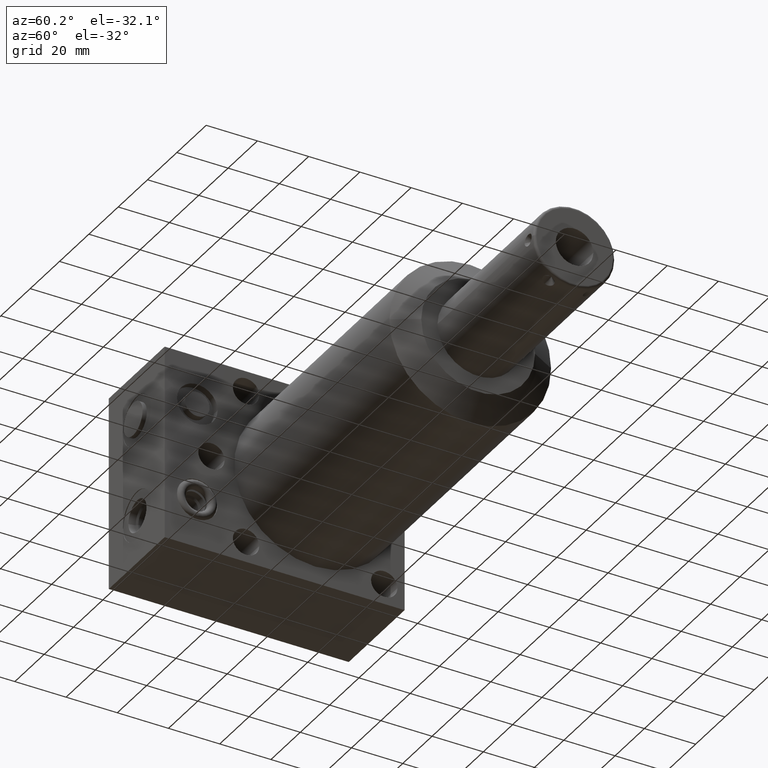
[diagram: clean part render]
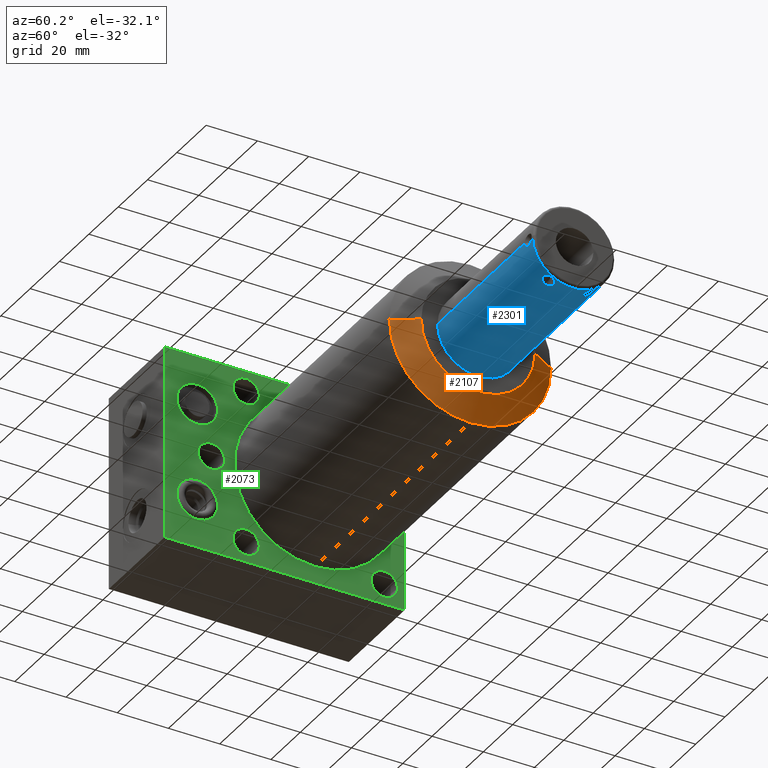
[diagram: same view with three faces highlighted in distinct colors, each labeled with its STEP entity id]
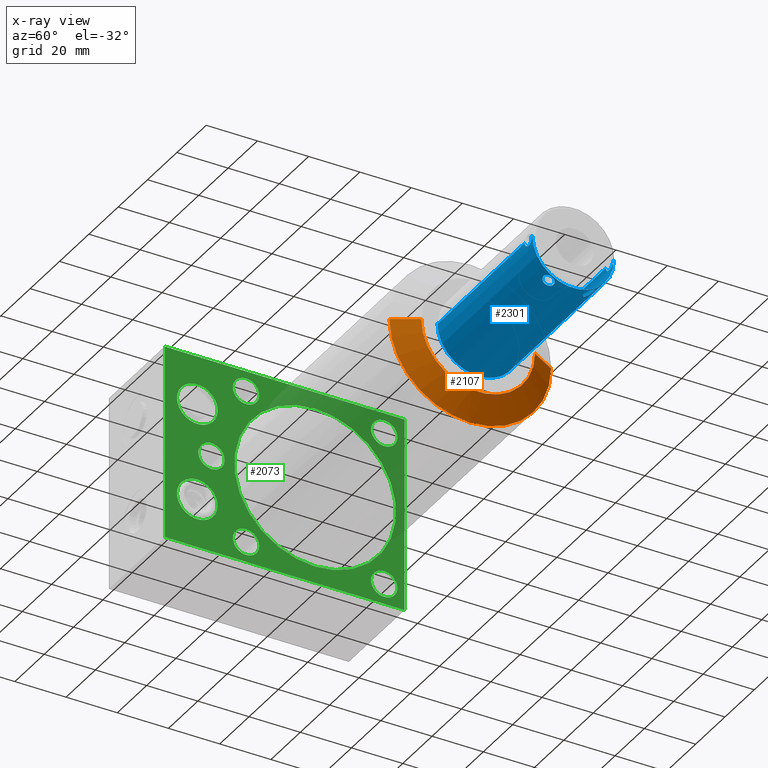
[diagram: x-ray of the same camera — body ghosted, the three highlighted faces saturated]
A machine part, auxiliary view with three faces highlighted in distinct colors.
The next image is the same camera in x-ray (body ghosted, the three faces saturated) — at least one of them is partly hidden behind the body in this view.
Their STEP definitions:

[orange] entity #2107 — the highlighted conical surface has half-angle 60 deg.
#248=CARTESIAN_POINT('',(4.162823776073E0,0.E0,0.E0));
#249=DIRECTION('',(1.E0,0.E0,0.E0));
#250=DIRECTION('',(0.E0,0.E0,-1.E0));
#251=AXIS2_PLACEMENT_3D('',#248,#249,#250);
#256=CARTESIAN_POINT('',(4.162823776073E0,0.E0,0.E0));
#257=DIRECTION('',(1.E0,0.E0,0.E0));
#258=DIRECTION('',(0.E0,-1.E0,0.E0));
#259=AXIS2_PLACEMENT_3D('',#256,#257,#258);
#264=CARTESIAN_POINT('',(4.375E0,0.E0,0.E0));
#265=DIRECTION('',(-1.E0,0.E0,0.E0));
#266=DIRECTION('',(0.E0,1.E0,0.E0));
#267=AXIS2_PLACEMENT_3D('',#264,#265,#266);
#296=DIRECTION('',(5.E-1,8.660254037844E-1,0.E0));
#297=VECTOR('',#296,4.243524478544E-1);
#298=CARTESIAN_POINT('',(4.162823776073E0,-1.2425E0,0.E0));
#299=LINE('',#298,#297);
#319=DIRECTION('',(5.E-1,-8.660254037844E-1,0.E0));
#320=VECTOR('',#319,4.243524478544E-1);
#321=CARTESIAN_POINT('',(4.162823776073E0,1.2425E0,0.E0));
#322=LINE('',#321,#320);
#1714=CARTESIAN_POINT('',(4.375E0,8.75E-1,0.E0));
#1715=CARTESIAN_POINT('',(4.375E0,-8.75E-1,0.E0));
#1716=VERTEX_POINT('',#1714);
#1717=VERTEX_POINT('',#1715);
#1718=CARTESIAN_POINT('',(4.162823776073E0,-1.2425E0,0.E0));
#1719=CARTESIAN_POINT('',(4.162823776073E0,0.E0,-1.2425E0));
#1720=VERTEX_POINT('',#1718);
#1721=VERTEX_POINT('',#1719);
#1724=CARTESIAN_POINT('',(4.162823776073E0,1.2425E0,0.E0));
#1725=VERTEX_POINT('',#1724);
#2091=CARTESIAN_POINT('',(4.268911888036E0,0.E0,0.E0));
#2092=DIRECTION('',(-1.E0,0.E0,0.E0));
#2093=DIRECTION('',(0.E0,1.E0,0.E0));
#2094=AXIS2_PLACEMENT_3D('',#2091,#2092,#2093);
#2095=CONICAL_SURFACE('',#2094,1.05875E0,6.E1);
#2097=ORIENTED_EDGE('',*,*,#2096,.F.);
#2099=ORIENTED_EDGE('',*,*,#2098,.F.);
#2101=ORIENTED_EDGE('',*,*,#2100,.F.);
#2102=ORIENTED_EDGE('',*,*,#2079,.F.);
#2104=ORIENTED_EDGE('',*,*,#2103,.T.);
#2105=EDGE_LOOP('',(#2097,#2099,#2101,#2102,#2104));
#2106=FACE_OUTER_BOUND('',#2105,.F.);
#252=CIRCLE('',#251,1.2425E0);
#260=CIRCLE('',#259,1.2425E0);
#268=CIRCLE('',#267,8.75E-1);
#2079=EDGE_CURVE('',#1720,#1721,#260,.T.);
#2096=EDGE_CURVE('',#1716,#1717,#268,.T.);
#2098=EDGE_CURVE('',#1725,#1716,#322,.T.);
#2100=EDGE_CURVE('',#1721,#1725,#252,.T.);
#2103=EDGE_CURVE('',#1720,#1717,#299,.T.);
#2107=ADVANCED_FACE('',(#2106),#2095,.T.);

[blue] entity #2301 — the highlighted cylindrical surface (partial cylindrical patch) has radius 15.875 mm, axis along (1, 0, 0).
#288=CARTESIAN_POINT('',(4.375E0,0.E0,0.E0));
#289=DIRECTION('',(1.E0,0.E0,0.E0));
#290=DIRECTION('',(0.E0,-1.E0,0.E0));
#291=AXIS2_PLACEMENT_3D('',#288,#289,#290);
#426=CARTESIAN_POINT('',(6.712E0,-6.25E-1,0.E0));
#438=CARTESIAN_POINT('',(6.902E0,-6.25E-1,0.E0));
#485=CARTESIAN_POINT('',(6.902E0,6.25E-1,0.E0));
#486=CARTESIAN_POINT('',(6.902E0,6.25E-1,-9.038778184200E-3));
#487=CARTESIAN_POINT('',(6.899197090101E0,6.246214994407E-1,
-2.641958211217E-2));
#488=CARTESIAN_POINT('',(6.886100187530E0,6.230064168352E-1,
-5.169616009336E-2));
#489=CARTESIAN_POINT('',(6.864905021825E0,6.209008443581E-1,
-7.213962373854E-2));
#490=CARTESIAN_POINT('',(6.837609786821E0,6.191343630447E-1,
-8.557450583044E-2));
#491=CARTESIAN_POINT('',(6.806794509527E0,6.184438666532E-1,
-9.026003401713E-2));
#492=CARTESIAN_POINT('',(6.775946092184E0,6.191530349822E-1,
-8.544671636977E-2));
#493=CARTESIAN_POINT('',(6.748678593607E0,6.209372708755E-1,
-7.183201640715E-2));
#494=CARTESIAN_POINT('',(6.727823744223E0,6.230172500088E-1,
-5.151858289071E-2));
#495=CARTESIAN_POINT('',(6.714864654957E0,6.246133559780E-1,
-2.655961842973E-2));
#496=CARTESIAN_POINT('',(6.712E0,6.25E-1,-9.109854934676E-3));
#497=CARTESIAN_POINT('',(6.712E0,6.25E-1,0.E0));
#502=DIRECTION('',(-1.E0,0.E0,0.E0));
#503=VECTOR('',#502,2.337E0);
#504=CARTESIAN_POINT('',(6.712E0,6.25E-1,0.E0));
#505=LINE('',#504,#503);
#509=DIRECTION('',(-1.E0,0.E0,0.E0));
#510=VECTOR('',#509,2.337E0);
#511=CARTESIAN_POINT('',(6.712E0,-6.25E-1,0.E0));
#512=LINE('',#511,#510);
#516=CARTESIAN_POINT('',(6.902E0,-6.25E-1,0.E0));
#517=CARTESIAN_POINT('',(6.902E0,-6.25E-1,-9.115732308504E-3));
#518=CARTESIAN_POINT('',(6.899135489535E0,-6.246132304563E-1,
-2.657529729536E-2));
#519=CARTESIAN_POINT('',(6.886135110311E0,-6.230125625937E-1,
-5.157630565654E-2));
#520=CARTESIAN_POINT('',(6.865280842056E0,-6.209338542969E-1,
-7.185897611602E-2));
#521=CARTESIAN_POINT('',(6.837992675741E0,-6.191501164435E-1,
-8.546791491443E-2));
#522=CARTESIAN_POINT('',(6.807145437248E0,-6.184441204524E-1,
-9.025768707266E-2));
#523=CARTESIAN_POINT('',(6.776343452505E0,-6.191361767959E-1,
-8.556332011490E-2));
#524=CARTESIAN_POINT('',(6.749035558012E0,-6.209063330313E-1,
-7.209100920678E-2));
#525=CARTESIAN_POINT('',(6.727954823128E0,-6.230009880333E-1,
-5.174131266836E-2));
#526=CARTESIAN_POINT('',(6.714847495378E0,-6.246154425299E-1,
-2.656022335033E-2));
#527=CARTESIAN_POINT('',(6.712E0,-6.25E-1,-9.101365645113E-3));
#528=CARTESIAN_POINT('',(6.712E0,-6.25E-1,0.E0));
#533=DIRECTION('',(-1.E0,0.E0,0.E0));
#534=VECTOR('',#533,2.1E-2);
#535=CARTESIAN_POINT('',(6.923E0,-6.25E-1,0.E0));
#536=LINE('',#535,#534);
#540=CARTESIAN_POINT('',(6.923E0,0.E0,0.E0));
#541=DIRECTION('',(-1.E0,0.E0,0.E0));
#542=DIRECTION('',(0.E0,1.E0,0.E0));
#543=AXIS2_PLACEMENT_3D('',#540,#541,#542);
#548=DIRECTION('',(-1.E0,0.E0,0.E0));
#549=VECTOR('',#548,2.1E-2);
#550=CARTESIAN_POINT('',(6.923E0,6.25E-1,0.E0));
#551=LINE('',#550,#549);
#555=CARTESIAN_POINT('',(6.807E0,2.325419240423E-1,-5.801286525959E-1));
#556=CARTESIAN_POINT('',(6.796341422807E0,2.325419240423E-1,
-5.801286525959E-1));
#557=CARTESIAN_POINT('',(6.776308969172E0,2.355185344188E-1,
-5.789488033486E-1));
#558=CARTESIAN_POINT('',(6.748680543097E0,2.481969727774E-1,
-5.736931216410E-1));
#559=CARTESIAN_POINT('',(6.727752202614E0,2.670095946245E-1,
-5.652509402567E-1));
#560=CARTESIAN_POINT('',(6.714861206217E0,2.892477856714E-1,
-5.542445297767E-1));
#561=CARTESIAN_POINT('',(6.710569464671E0,3.125979507959E-1,
-5.414323247835E-1));
#562=CARTESIAN_POINT('',(6.714860935118E0,3.353642441095E-1,
-5.276192223148E-1));
#563=CARTESIAN_POINT('',(6.727751453750E0,3.560162830489E-1,
-5.138630029042E-1));
#564=CARTESIAN_POINT('',(6.748679466078E0,3.727336147669E-1,
-5.017919687897E-1));
#565=CARTESIAN_POINT('',(6.776307342766E0,3.836247488598E-1,
-4.934397187508E-1));
#566=CARTESIAN_POINT('',(6.796340741207E0,3.861351885901E-1,
-4.914515399635E-1));
#567=CARTESIAN_POINT('',(6.807E0,3.861351885901E-1,-4.914515399635E-1));
#572=CARTESIAN_POINT('',(6.807E0,3.861351885901E-1,-4.914515399635E-1));
#573=CARTESIAN_POINT('',(6.817659415585E0,3.861351885901E-1,
-4.914515399635E-1));
#574=CARTESIAN_POINT('',(6.837693304348E0,3.836247228691E-1,
-4.934397413938E-1));
#575=CARTESIAN_POINT('',(6.865323256663E0,3.727323925167E-1,
-5.017929054970E-1));
#576=CARTESIAN_POINT('',(6.886252210467E0,3.560125239301E-1,
-5.138656518725E-1));
#577=CARTESIAN_POINT('',(6.899140192616E0,3.353600680421E-1,
-5.276218135372E-1));
#578=CARTESIAN_POINT('',(6.903430300103E0,3.125983251271E-1,
-5.414320661552E-1));
#579=CARTESIAN_POINT('',(6.899138606967E0,2.892486449560E-1,
-5.542440235340E-1));
#580=CARTESIAN_POINT('',(6.886252590820E0,2.670159053869E-1,
-5.652479350134E-1));
#581=CARTESIAN_POINT('',(6.865324149441E0,2.481995927447E-1,
-5.736920417536E-1));
#582=CARTESIAN_POINT('',(6.837694600454E0,2.355194054774E-1,
-5.789484485233E-1));
#583=CARTESIAN_POINT('',(6.817659966016E0,2.325419240423E-1,
-5.801286525959E-1));
#584=CARTESIAN_POINT('',(6.807E0,2.325419240423E-1,-5.801286525959E-1));
#589=CARTESIAN_POINT('',(6.807E0,-3.861351885901E-1,-4.914515399635E-1));
#590=CARTESIAN_POINT('',(6.796341422807E0,-3.861351885901E-1,
-4.914515399635E-1));
#591=CARTESIAN_POINT('',(6.776308969172E0,-3.836251039811E-1,
-4.934394355431E-1));
#592=CARTESIAN_POINT('',(6.748680543097E0,-3.727343309288E-1,
-5.017914443881E-1));
#593=CARTESIAN_POINT('',(6.727752202614E0,-3.560168764631E-1,
-5.138625621273E-1));
#594=CARTESIAN_POINT('',(6.714861206217E0,-3.353659498595E-1,
-5.276181952681E-1));
#595=CARTESIAN_POINT('',(6.710569464671E0,-3.125951722947E-1,
-5.414339289520E-1));
#596=CARTESIAN_POINT('',(6.714860935118E0,-2.892495279948E-1,
-5.542435660772E-1));
#597=CARTESIAN_POINT('',(6.727751453750E0,-2.670102730555E-1,
-5.652506467333E-1));
#598=CARTESIAN_POINT('',(6.748679466078E0,-2.481977850035E-1,
-5.736927636274E-1));
#599=CARTESIAN_POINT('',(6.776307342766E0,-2.355189572446E-1,
-5.789486374084E-1));
#600=CARTESIAN_POINT('',(6.796340741207E0,-2.325419240423E-1,
-5.801286525959E-1));
#601=CARTESIAN_POINT('',(6.807E0,-2.325419240423E-1,-5.801286525959E-1));
#606=CARTESIAN_POINT('',(6.807E0,-2.325419240423E-1,-5.801286525959E-1));
#607=CARTESIAN_POINT('',(6.817659415585E0,-2.325419240423E-1,
-5.801286525959E-1));
#608=CARTESIAN_POINT('',(6.837693304348E0,-2.355189898493E-1,
-5.789486262212E-1));
#609=CARTESIAN_POINT('',(6.865323256663E0,-2.481992073409E-1,
-5.736921734813E-1));
#610=CARTESIAN_POINT('',(6.886252210467E0,-2.670144466888E-1,
-5.652487157251E-1));
#611=CARTESIAN_POINT('',(6.899140192616E0,-2.892538600930E-1,
-5.542412451079E-1));
#612=CARTESIAN_POINT('',(6.903430300103E0,-3.125947611504E-1,
-5.414341238182E-1));
#613=CARTESIAN_POINT('',(6.899138606967E0,-3.353650817981E-1,
-5.276186863092E-1));
#614=CARTESIAN_POINT('',(6.886252590820E0,-3.560111184648E-1,
-5.138665247862E-1));
#615=CARTESIAN_POINT('',(6.865324149441E0,-3.727320857352E-1,
-5.017931734026E-1));
#616=CARTESIAN_POINT('',(6.837694600454E0,-3.836243611640E-1,
-4.934400124893E-1));
#617=CARTESIAN_POINT('',(6.817659966016E0,-3.861351885901E-1,
-4.914515399635E-1));
#618=CARTESIAN_POINT('',(6.807E0,-3.861351885901E-1,-4.914515399635E-1));
#1828=CARTESIAN_POINT('',(4.375E0,6.25E-1,0.E0));
#1829=CARTESIAN_POINT('',(4.375E0,-6.25E-1,0.E0));
#1830=VERTEX_POINT('',#1828);
#1831=VERTEX_POINT('',#1829);
#1899=CARTESIAN_POINT('',(6.923E0,6.25E-1,0.E0));
#1901=VERTEX_POINT('',#1899);
#1903=CARTESIAN_POINT('',(6.923E0,-6.25E-1,0.E0));
#1905=VERTEX_POINT('',#1903);
#1906=VERTEX_POINT('',#426);
#1907=VERTEX_POINT('',#438);
#1924=VERTEX_POINT('',#485);
#1925=VERTEX_POINT('',#497);
#1928=VERTEX_POINT('',#555);
#1929=VERTEX_POINT('',#567);
#1932=VERTEX_POINT('',#589);
#1933=VERTEX_POINT('',#601);
#2272=CARTESIAN_POINT('',(4.2456E0,0.E0,0.E0));
#2273=DIRECTION('',(1.E0,0.E0,0.E0));
#2274=DIRECTION('',(0.E0,-1.E0,0.E0));
#2275=AXIS2_PLACEMENT_3D('',#2272,#2273,#2274);
#2276=CYLINDRICAL_SURFACE('',#2275,6.25E-1);
#2277=ORIENTED_EDGE('',*,*,#2265,.T.);
#2278=ORIENTED_EDGE('',*,*,#2170,.T.);
#2279=ORIENTED_EDGE('',*,*,#2120,.F.);
#2280=ORIENTED_EDGE('',*,*,#2167,.F.);
#2282=ORIENTED_EDGE('',*,*,#2281,.F.);
#2283=ORIENTED_EDGE('',*,*,#2163,.F.);
#2285=ORIENTED_EDGE('',*,*,#2284,.F.);
#2286=ORIENTED_EDGE('',*,*,#2159,.T.);
#2287=EDGE_LOOP('',(#2277,#2278,#2279,#2280,#2282,#2283,#2285,#2286));
#2288=FACE_OUTER_BOUND('',#2287,.F.);
#2290=ORIENTED_EDGE('',*,*,#2289,.T.);
#2292=ORIENTED_EDGE('',*,*,#2291,.T.);
#2293=EDGE_LOOP('',(#2290,#2292));
#2294=FACE_BOUND('',#2293,.F.);
#2296=ORIENTED_EDGE('',*,*,#2295,.T.);
#2298=ORIENTED_EDGE('',*,*,#2297,.T.);
#2299=EDGE_LOOP('',(#2296,#2298));
#2300=FACE_BOUND('',#2299,.F.);
#292=CIRCLE('',#291,6.25E-1);
#498=B_SPLINE_CURVE_WITH_KNOTS('',3,(#485,#486,#487,#488,#489,#490,#491,#492,
#493,#494,#495,#496,#497),.UNSPECIFIED.,.F.,.F.,(4,1,1,1,1,1,1,1,1,1,4),(0.E0,
1.E-1,2.E-1,3.E-1,4.E-1,5.E-1,6.E-1,7.E-1,8.E-1,9.E-1,1.E0),.UNSPECIFIED.);
#529=B_SPLINE_CURVE_WITH_KNOTS('',3,(#516,#517,#518,#519,#520,#521,#522,#523,
#524,#525,#526,#527,#528),.UNSPECIFIED.,.F.,.F.,(4,1,1,1,1,1,1,1,1,1,4),(0.E0,
1.E-1,2.E-1,3.E-1,4.E-1,5.E-1,6.E-1,7.E-1,8.E-1,9.E-1,1.E0),.UNSPECIFIED.);
#544=CIRCLE('',#543,6.25E-1);
#568=B_SPLINE_CURVE_WITH_KNOTS('',3,(#555,#556,#557,#558,#559,#560,#561,#562,
#563,#564,#565,#566,#567),.UNSPECIFIED.,.F.,.F.,(4,1,1,1,1,1,1,1,1,1,4),(0.E0,
1.E-1,2.E-1,3.E-1,4.E-1,5.E-1,6.E-1,7.E-1,8.E-1,9.E-1,1.E0),.UNSPECIFIED.);
#585=B_SPLINE_CURVE_WITH_KNOTS('',3,(#572,#573,#574,#575,#576,#577,#578,#579,
#580,#581,#582,#583,#584),.UNSPECIFIED.,.F.,.F.,(4,1,1,1,1,1,1,1,1,1,4),(0.E0,
1.E-1,2.E-1,3.E-1,4.E-1,5.E-1,6.E-1,7.E-1,8.E-1,9.E-1,1.E0),.UNSPECIFIED.);
#602=B_SPLINE_CURVE_WITH_KNOTS('',3,(#589,#590,#591,#592,#593,#594,#595,#596,
#597,#598,#599,#600,#601),.UNSPECIFIED.,.F.,.F.,(4,1,1,1,1,1,1,1,1,1,4),(0.E0,
1.E-1,2.E-1,3.E-1,4.E-1,5.E-1,6.E-1,7.E-1,8.E-1,9.E-1,1.E0),.UNSPECIFIED.);
#619=B_SPLINE_CURVE_WITH_KNOTS('',3,(#606,#607,#608,#609,#610,#611,#612,#613,
#614,#615,#616,#617,#618),.UNSPECIFIED.,.F.,.F.,(4,1,1,1,1,1,1,1,1,1,4),(0.E0,
1.E-1,2.E-1,3.E-1,4.E-1,5.E-1,6.E-1,7.E-1,8.E-1,9.E-1,1.E0),.UNSPECIFIED.);
#2120=EDGE_CURVE('',#1831,#1830,#292,.T.);
#2159=EDGE_CURVE('',#1901,#1924,#551,.T.);
#2163=EDGE_CURVE('',#1905,#1907,#536,.T.);
#2167=EDGE_CURVE('',#1906,#1831,#512,.T.);
#2170=EDGE_CURVE('',#1925,#1830,#505,.T.);
#2265=EDGE_CURVE('',#1924,#1925,#498,.T.);
#2281=EDGE_CURVE('',#1907,#1906,#529,.T.);
#2284=EDGE_CURVE('',#1901,#1905,#544,.T.);
#2289=EDGE_CURVE('',#1928,#1929,#568,.T.);
#2291=EDGE_CURVE('',#1929,#1928,#585,.T.);
#2295=EDGE_CURVE('',#1932,#1933,#602,.T.);
#2297=EDGE_CURVE('',#1933,#1932,#619,.T.);
#2301=ADVANCED_FACE('',(#2288,#2294,#2300),#2276,.T.);

[green] entity #2073 — the highlighted planar face has unit normal (1, 0, 0).
#67=DIRECTION('',(0.E0,0.E0,1.E0));
#68=VECTOR('',#67,3.E0);
#69=CARTESIAN_POINT('',(0.E0,-2.313E0,-1.5E0));
#70=LINE('',#69,#68);
#113=CARTESIAN_POINT('',(0.E0,0.E0,0.E0));
#114=DIRECTION('',(1.E0,0.E0,0.E0));
#115=DIRECTION('',(0.E0,0.E0,1.E0));
#116=AXIS2_PLACEMENT_3D('',#113,#114,#115);
#121=CARTESIAN_POINT('',(0.E0,0.E0,0.E0));
#122=DIRECTION('',(1.E0,0.E0,0.E0));
#123=DIRECTION('',(0.E0,0.E0,-1.E0));
#124=AXIS2_PLACEMENT_3D('',#121,#122,#123);
#129=CARTESIAN_POINT('',(0.E0,1.062E0,1.187E0));
#130=DIRECTION('',(-1.E0,0.E0,0.E0));
#131=DIRECTION('',(0.E0,-1.E0,0.E0));
#132=AXIS2_PLACEMENT_3D('',#129,#130,#131);
#137=CARTESIAN_POINT('',(0.E0,1.062E0,1.187E0));
#138=DIRECTION('',(-1.E0,0.E0,0.E0));
#139=DIRECTION('',(0.E0,1.E0,0.E0));
#140=AXIS2_PLACEMENT_3D('',#137,#138,#139);
#145=CARTESIAN_POINT('',(0.E0,1.062E0,-1.187E0));
#146=DIRECTION('',(-1.E0,0.E0,0.E0));
#147=DIRECTION('',(0.E0,-1.E0,0.E0));
#148=AXIS2_PLACEMENT_3D('',#145,#146,#147);
#153=CARTESIAN_POINT('',(0.E0,1.062E0,-1.187E0));
#154=DIRECTION('',(-1.E0,0.E0,0.E0));
#155=DIRECTION('',(0.E0,1.E0,0.E0));
#156=AXIS2_PLACEMENT_3D('',#153,#154,#155);
#161=CARTESIAN_POINT('',(0.E0,-1.062E0,1.187E0));
#162=DIRECTION('',(-1.E0,0.E0,0.E0));
#163=DIRECTION('',(0.E0,-1.E0,0.E0));
#164=AXIS2_PLACEMENT_3D('',#161,#162,#163);
#169=CARTESIAN_POINT('',(0.E0,-1.062E0,1.187E0));
#170=DIRECTION('',(-1.E0,0.E0,0.E0));
#171=DIRECTION('',(0.E0,1.E0,0.E0));
#172=AXIS2_PLACEMENT_3D('',#169,#170,#171);
#177=CARTESIAN_POINT('',(0.E0,-1.062E0,-1.187E0));
#178=DIRECTION('',(-1.E0,0.E0,0.E0));
#179=DIRECTION('',(0.E0,-1.E0,0.E0));
#180=AXIS2_PLACEMENT_3D('',#177,#178,#179);
#185=CARTESIAN_POINT('',(0.E0,-1.062E0,-1.187E0));
#186=DIRECTION('',(-1.E0,0.E0,0.E0));
#187=DIRECTION('',(0.E0,1.E0,0.E0));
#188=AXIS2_PLACEMENT_3D('',#185,#186,#187);
#193=CARTESIAN_POINT('',(0.E0,-1.594E0,0.E0));
#194=DIRECTION('',(-1.E0,0.E0,0.E0));
#195=DIRECTION('',(0.E0,-1.E0,0.E0));
#196=AXIS2_PLACEMENT_3D('',#193,#194,#195);
#201=CARTESIAN_POINT('',(0.E0,-1.594E0,0.E0));
#202=DIRECTION('',(-1.E0,0.E0,0.E0));
#203=DIRECTION('',(0.E0,1.E0,0.E0));
#204=AXIS2_PLACEMENT_3D('',#201,#202,#203);
#209=CARTESIAN_POINT('',(0.E0,-1.812E0,7.5E-1));
#210=DIRECTION('',(-1.E0,0.E0,0.E0));
#211=DIRECTION('',(0.E0,-1.E0,0.E0));
#212=AXIS2_PLACEMENT_3D('',#209,#210,#211);
#217=CARTESIAN_POINT('',(0.E0,-1.812E0,7.5E-1));
#218=DIRECTION('',(-1.E0,0.E0,0.E0));
#219=DIRECTION('',(0.E0,1.E0,0.E0));
#220=AXIS2_PLACEMENT_3D('',#217,#218,#219);
#225=CARTESIAN_POINT('',(0.E0,-1.812E0,-7.5E-1));
#226=DIRECTION('',(-1.E0,0.E0,0.E0));
#227=DIRECTION('',(0.E0,-1.E0,0.E0));
#228=AXIS2_PLACEMENT_3D('',#225,#226,#227);
#233=CARTESIAN_POINT('',(0.E0,-1.812E0,-7.5E-1));
#234=DIRECTION('',(-1.E0,0.E0,0.E0));
#235=DIRECTION('',(0.E0,1.E0,0.E0));
#236=AXIS2_PLACEMENT_3D('',#233,#234,#235);
#757=DIRECTION('',(0.E0,1.E0,0.E0));
#758=VECTOR('',#757,3.688E0);
#759=CARTESIAN_POINT('',(0.E0,-2.313E0,1.5E0));
#760=LINE('',#759,#758);
#911=DIRECTION('',(0.E0,-1.E0,0.E0));
#912=VECTOR('',#911,3.688E0);
#913=CARTESIAN_POINT('',(0.E0,1.375E0,-1.5E0));
#914=LINE('',#913,#912);
#925=DIRECTION('',(0.E0,0.E0,-1.E0));
#926=VECTOR('',#925,3.E0);
#927=CARTESIAN_POINT('',(0.E0,1.375E0,1.5E0));
#928=LINE('',#927,#926);
#1694=CARTESIAN_POINT('',(0.E0,0.E0,1.2425E0));
#1695=CARTESIAN_POINT('',(0.E0,0.E0,-1.2425E0));
#1696=VERTEX_POINT('',#1694);
#1697=VERTEX_POINT('',#1695);
#1706=CARTESIAN_POINT('',(0.E0,-2.313E0,1.5E0));
#1707=CARTESIAN_POINT('',(0.E0,1.375E0,1.5E0));
#1708=VERTEX_POINT('',#1706);
#1709=VERTEX_POINT('',#1707);
#1710=CARTESIAN_POINT('',(0.E0,-2.313E0,-1.5E0));
#1711=VERTEX_POINT('',#1710);
#1712=CARTESIAN_POINT('',(0.E0,1.375E0,-1.5E0));
#1713=VERTEX_POINT('',#1712);
#1730=CARTESIAN_POINT('',(0.E0,8.59E-1,1.187E0));
#1731=CARTESIAN_POINT('',(0.E0,1.265E0,1.187E0));
#1732=VERTEX_POINT('',#1730);
#1733=VERTEX_POINT('',#1731);
#1766=CARTESIAN_POINT('',(0.E0,-2.1245E0,7.5E-1));
#1767=CARTESIAN_POINT('',(0.E0,-1.4995E0,7.5E-1));
#1768=VERTEX_POINT('',#1766);
#1769=VERTEX_POINT('',#1767);
#1774=CARTESIAN_POINT('',(0.E0,-2.1245E0,-7.5E-1));
#1775=CARTESIAN_POINT('',(0.E0,-1.4995E0,-7.5E-1));
#1776=VERTEX_POINT('',#1774);
#1777=VERTEX_POINT('',#1775);
#1870=CARTESIAN_POINT('',(0.E0,8.59E-1,-1.187E0));
#1871=CARTESIAN_POINT('',(0.E0,1.265E0,-1.187E0));
#1872=VERTEX_POINT('',#1870);
#1873=VERTEX_POINT('',#1871);
#1878=CARTESIAN_POINT('',(0.E0,-1.265E0,1.187E0));
#1879=CARTESIAN_POINT('',(0.E0,-8.59E-1,1.187E0));
#1880=VERTEX_POINT('',#1878);
#1881=VERTEX_POINT('',#1879);
#1886=CARTESIAN_POINT('',(0.E0,-1.265E0,-1.187E0));
#1887=CARTESIAN_POINT('',(0.E0,-8.59E-1,-1.187E0));
#1888=VERTEX_POINT('',#1886);
#1889=VERTEX_POINT('',#1887);
#1894=CARTESIAN_POINT('',(0.E0,-1.797E0,0.E0));
#1895=CARTESIAN_POINT('',(0.E0,-1.391E0,0.E0));
#1896=VERTEX_POINT('',#1894);
#1897=VERTEX_POINT('',#1895);
#2011=CARTESIAN_POINT('',(0.E0,0.E0,0.E0));
#2012=DIRECTION('',(1.E0,0.E0,0.E0));
#2013=DIRECTION('',(0.E0,0.E0,-1.E0));
#2014=AXIS2_PLACEMENT_3D('',#2011,#2012,#2013);
#2015=PLANE('',#2014);
#2017=ORIENTED_EDGE('',*,*,#2016,.T.);
#2019=ORIENTED_EDGE('',*,*,#2018,.T.);
#2021=ORIENTED_EDGE('',*,*,#2020,.T.);
#2022=ORIENTED_EDGE('',*,*,#1989,.T.);
#2023=EDGE_LOOP('',(#2017,#2019,#2021,#2022));
#2024=FACE_OUTER_BOUND('',#2023,.F.);
#2026=ORIENTED_EDGE('',*,*,#2025,.T.);
#2028=ORIENTED_EDGE('',*,*,#2027,.T.);
#2029=EDGE_LOOP('',(#2026,#2028));
#2030=FACE_BOUND('',#2029,.F.);
#2032=ORIENTED_EDGE('',*,*,#2031,.F.);
#2034=ORIENTED_EDGE('',*,*,#2033,.F.);
#2035=EDGE_LOOP('',(#2032,#2034));
#2036=FACE_BOUND('',#2035,.F.);
#2038=ORIENTED_EDGE('',*,*,#2037,.F.);
#2040=ORIENTED_EDGE('',*,*,#2039,.F.);
#2041=EDGE_LOOP('',(#2038,#2040));
#2042=FACE_BOUND('',#2041,.F.);
#2044=ORIENTED_EDGE('',*,*,#2043,.F.);
#2046=ORIENTED_EDGE('',*,*,#2045,.F.);
#2047=EDGE_LOOP('',(#2044,#2046));
#2048=FACE_BOUND('',#2047,.F.);
#2050=ORIENTED_EDGE('',*,*,#2049,.F.);
#2052=ORIENTED_EDGE('',*,*,#2051,.F.);
#2053=EDGE_LOOP('',(#2050,#2052));
#2054=FACE_BOUND('',#2053,.F.);
#2056=ORIENTED_EDGE('',*,*,#2055,.F.);
#2058=ORIENTED_EDGE('',*,*,#2057,.F.);
#2059=EDGE_LOOP('',(#2056,#2058));
#2060=FACE_BOUND('',#2059,.F.);
#2062=ORIENTED_EDGE('',*,*,#2061,.F.);
#2064=ORIENTED_EDGE('',*,*,#2063,.F.);
#2065=EDGE_LOOP('',(#2062,#2064));
#2066=FACE_BOUND('',#2065,.F.);
#2068=ORIENTED_EDGE('',*,*,#2067,.F.);
#2070=ORIENTED_EDGE('',*,*,#2069,.F.);
#2071=EDGE_LOOP('',(#2068,#2070));
#2072=FACE_BOUND('',#2071,.F.);
#117=CIRCLE('',#116,1.2425E0);
#125=CIRCLE('',#124,1.2425E0);
#133=CIRCLE('',#132,2.03E-1);
#141=CIRCLE('',#140,2.03E-1);
#149=CIRCLE('',#148,2.03E-1);
#157=CIRCLE('',#156,2.03E-1);
#165=CIRCLE('',#164,2.03E-1);
#173=CIRCLE('',#172,2.03E-1);
#181=CIRCLE('',#180,2.03E-1);
#189=CIRCLE('',#188,2.03E-1);
#197=CIRCLE('',#196,2.03E-1);
#205=CIRCLE('',#204,2.03E-1);
#213=CIRCLE('',#212,3.125E-1);
#221=CIRCLE('',#220,3.125E-1);
#229=CIRCLE('',#228,3.125E-1);
#237=CIRCLE('',#236,3.125E-1);
#1989=EDGE_CURVE('',#1711,#1708,#70,.T.);
#2016=EDGE_CURVE('',#1708,#1709,#760,.T.);
#2018=EDGE_CURVE('',#1709,#1713,#928,.T.);
#2020=EDGE_CURVE('',#1713,#1711,#914,.T.);
#2025=EDGE_CURVE('',#1696,#1697,#117,.T.);
#2027=EDGE_CURVE('',#1697,#1696,#125,.T.);
#2031=EDGE_CURVE('',#1732,#1733,#133,.T.);
#2033=EDGE_CURVE('',#1733,#1732,#141,.T.);
#2037=EDGE_CURVE('',#1872,#1873,#149,.T.);
#2039=EDGE_CURVE('',#1873,#1872,#157,.T.);
#2043=EDGE_CURVE('',#1880,#1881,#165,.T.);
#2045=EDGE_CURVE('',#1881,#1880,#173,.T.);
#2049=EDGE_CURVE('',#1888,#1889,#181,.T.);
#2051=EDGE_CURVE('',#1889,#1888,#189,.T.);
#2055=EDGE_CURVE('',#1896,#1897,#197,.T.);
#2057=EDGE_CURVE('',#1897,#1896,#205,.T.);
#2061=EDGE_CURVE('',#1768,#1769,#213,.T.);
#2063=EDGE_CURVE('',#1769,#1768,#221,.T.);
#2067=EDGE_CURVE('',#1776,#1777,#229,.T.);
#2069=EDGE_CURVE('',#1777,#1776,#237,.T.);
#2073=ADVANCED_FACE('',(#2024,#2030,#2036,#2042,#2048,#2054,#2060,#2066,#2072),
#2015,.T.);